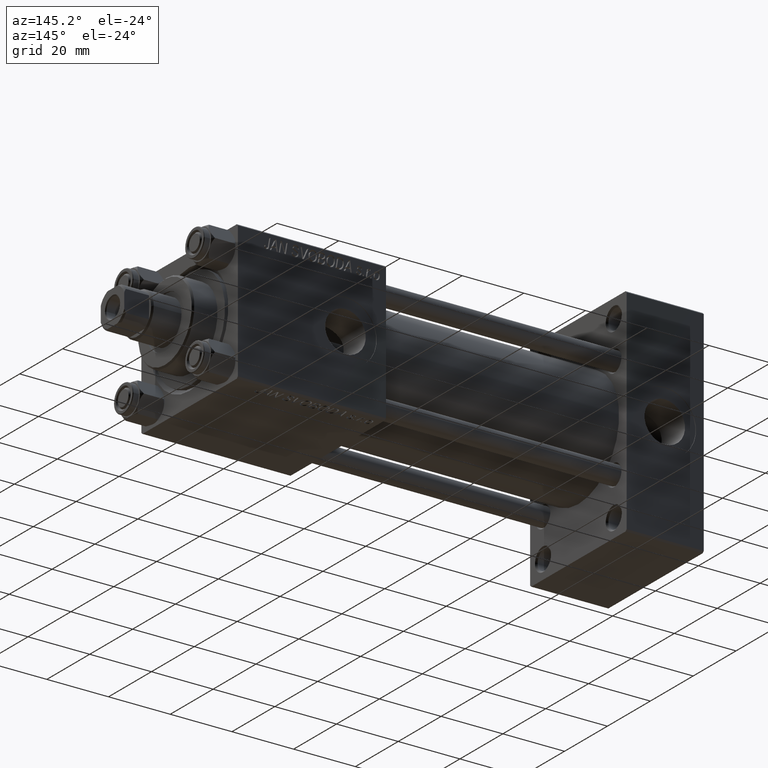
[diagram: clean part render]
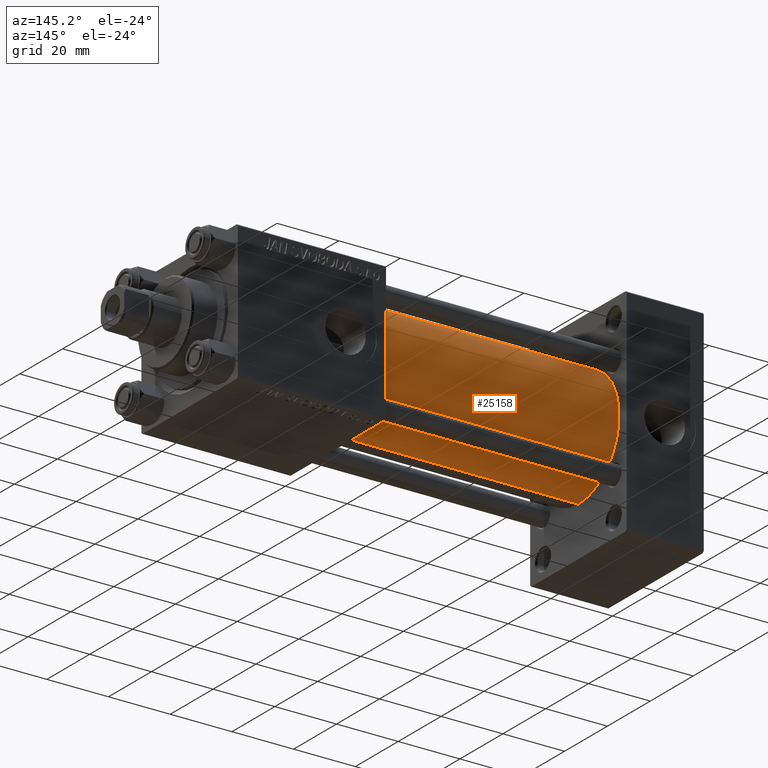
[diagram: same view with one face highlighted and labeled with its STEP entity id]
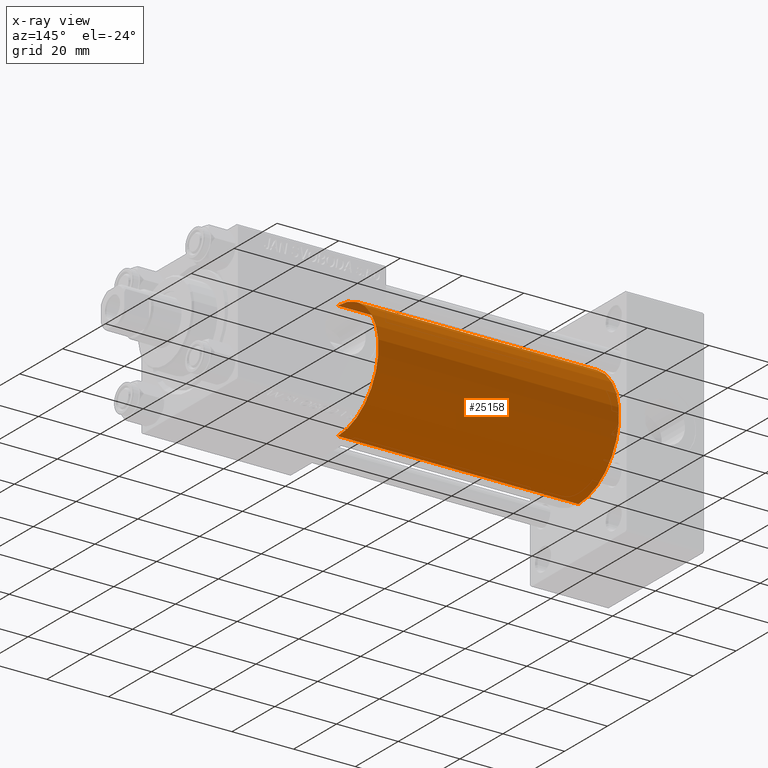
[diagram: x-ray of the same camera — body ghosted, the highlighted face saturated]
A machine part, auxiliary view. The second image highlights one B-rep face of the part: STEP entity #25158.
The next image is the same camera in x-ray: the body ghosted, the highlighted face saturated — about 1% of this face is hidden behind the body in this view.
In plain terms, the highlighted cylindrical surface (partial cylindrical patch) has radius 19 mm, axis along (-1, -0, -0).
Its self-contained STEP definition (entity closure, byte-faithful):
#248 = CARTESIAN_POINT ( 'NONE',  ( 24.99999999999999289, -2.602085213965210642E-15, 19.00000000000000000 ) ) ;
#2345 = VECTOR ( 'NONE', #45924, 1000.000000000000000 ) ;
#2916 = CARTESIAN_POINT ( 'NONE',  ( 103.0000000000000142, -2.752562955852396712E-16, -19.00000000000000000 ) ) ;
#3955 = EDGE_LOOP ( 'NONE', ( #39428, #42498, #25633, #12358 ) ) ;
#4600 = DIRECTION ( 'NONE',  ( 0.000000000000000000, 0.000000000000000000, -1.000000000000000000 ) ) ;
#4629 = VERTEX_POINT ( 'NONE', #2916 ) ;
#6939 = DIRECTION ( 'NONE',  ( -1.000000000000000000, -0.000000000000000000, -0.000000000000000000 ) ) ;
#7831 = CIRCLE ( 'NONE', #32854, 19.00000000000000000 ) ;
#8648 = DIRECTION ( 'NONE',  ( 1.000000000000000000, 0.000000000000000000, 0.000000000000000000 ) ) ;
#11254 = EDGE_CURVE ( 'NONE', #4629, #26100, #15108, .T. ) ;
#11317 = CARTESIAN_POINT ( 'NONE',  ( 103.0000000000000142, -2.602085213965210642E-15, 19.00000000000000000 ) ) ;
#11396 = CARTESIAN_POINT ( 'NONE',  ( 103.0000000000000142, -2.602085213965210642E-15, 19.00000000000000000 ) ) ;
#11616 = CARTESIAN_POINT ( 'NONE',  ( 24.99999999999999289, -2.752562955852396712E-16, -19.00000000000000000 ) ) ;
#12358 = ORIENTED_EDGE ( 'NONE', *, *, #29585, .F. ) ;
#13776 = CYLINDRICAL_SURFACE ( 'NONE', #22045, 19.00000000000000000 ) ;
#15108 = LINE ( 'NONE', #34305, #2345 ) ;
#16559 = FACE_OUTER_BOUND ( 'NONE', #3955, .T. ) ;
#17003 = VERTEX_POINT ( 'NONE', #248 ) ;
#21859 = DIRECTION ( 'NONE',  ( 0.000000000000000000, 0.000000000000000000, 1.000000000000000000 ) ) ;
#22045 = AXIS2_PLACEMENT_3D ( 'NONE', #40802, #6939, #21859 ) ;
#23565 = VERTEX_POINT ( 'NONE', #11396 ) ;
#24076 = CARTESIAN_POINT ( 'NONE',  ( 103.0000000000000142, -2.602085213965210642E-15, 0.000000000000000000 ) ) ;
#25094 = AXIS2_PLACEMENT_3D ( 'NONE', #24076, #8648, #4600 ) ;
#25140 = CARTESIAN_POINT ( 'NONE',  ( 24.99999999999999289, -2.602085213965210642E-15, 0.000000000000000000 ) ) ;
#25158 = ADVANCED_FACE ( 'NONE', ( #16559 ), #13776, .T. ) ;
#25633 = ORIENTED_EDGE ( 'NONE', *, *, #34930, .T. ) ;
#26100 = VERTEX_POINT ( 'NONE', #11616 ) ;
#29585 = EDGE_CURVE ( 'NONE', #23565, #17003, #45932, .T. ) ;
#32854 = AXIS2_PLACEMENT_3D ( 'NONE', #25140, #37430, #41718 ) ;
#34305 = CARTESIAN_POINT ( 'NONE',  ( 103.0000000000000142, -2.752562955852396712E-16, -19.00000000000000000 ) ) ;
#34930 = EDGE_CURVE ( 'NONE', #26100, #17003, #7831, .T. ) ;
#37191 = CIRCLE ( 'NONE', #25094, 19.00000000000000000 ) ;
#37430 = DIRECTION ( 'NONE',  ( 1.000000000000000000, -0.000000000000000000, 0.000000000000000000 ) ) ;
#39428 = ORIENTED_EDGE ( 'NONE', *, *, #48775, .F. ) ;
#40802 = CARTESIAN_POINT ( 'NONE',  ( 103.0000000000000142, -2.602085213965210642E-15, 0.000000000000000000 ) ) ;
#41718 = DIRECTION ( 'NONE',  ( 0.000000000000000000, 0.000000000000000000, 1.000000000000000000 ) ) ;
#42498 = ORIENTED_EDGE ( 'NONE', *, *, #11254, .T. ) ;
#44653 = VECTOR ( 'NONE', #46182, 1000.000000000000000 ) ;
#45924 = DIRECTION ( 'NONE',  ( -1.000000000000000000, -0.000000000000000000, -0.000000000000000000 ) ) ;
#45932 = LINE ( 'NONE', #11317, #44653 ) ;
#46182 = DIRECTION ( 'NONE',  ( -1.000000000000000000, -0.000000000000000000, -0.000000000000000000 ) ) ;
#48775 = EDGE_CURVE ( 'NONE', #4629, #23565, #37191, .T. ) ;